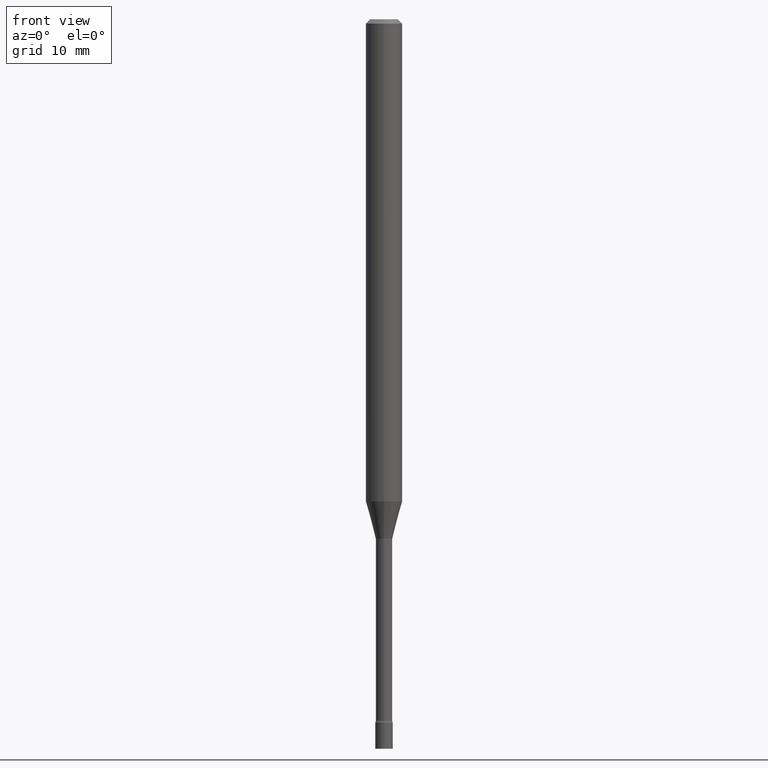
[diagram: clean part render]
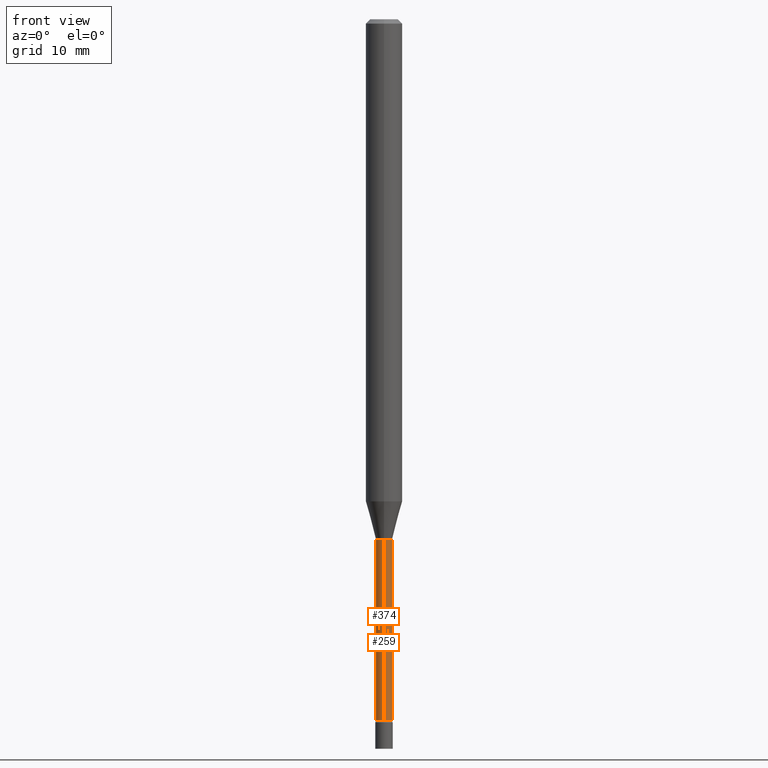
[diagram: same view with one multi-face feature highlighted, each face labeled with its STEP entity id]
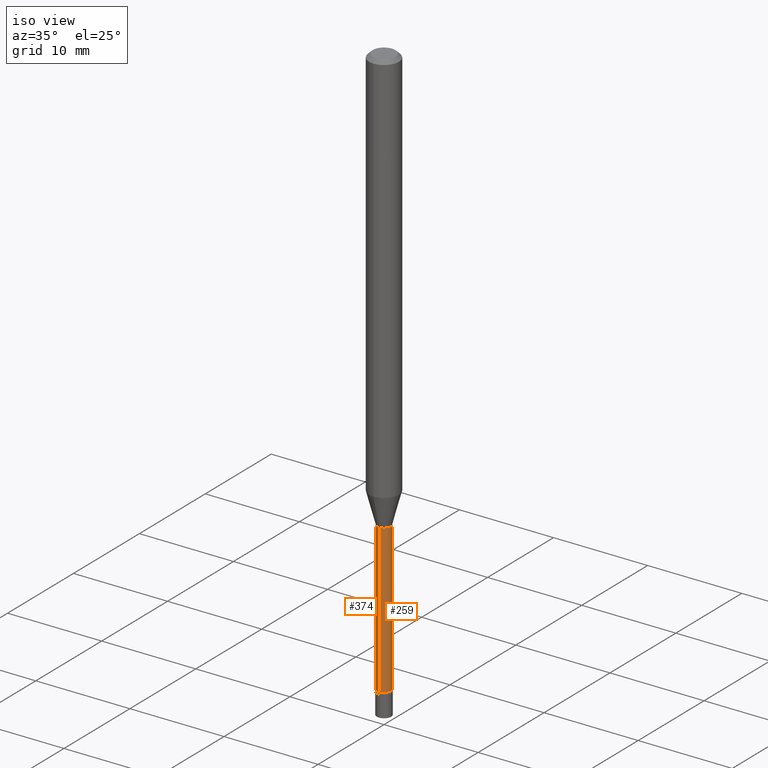
[diagram: same view with one multi-face feature highlighted, each face labeled with its STEP entity id]
A machine part, front view. The highlighted faces form ONE feature: a constant-radius fillet chain: 2 tangent blend faces with common blend radius 0.7163 mm. The faces share edges in the B-rep.
A second angle (iso view) of the same feature is appended — it is thin or edge-on in the first view.
Their STEP definitions:
[1] entity #259 (Cylinder):
#60 = VERTEX_POINT ( 'NONE', #427 ) ;
#77 = ORIENTED_EDGE ( 'NONE', *, *, #159, .F. ) ;
#87 = CARTESIAN_POINT ( 'NONE',  ( 4.357844746402980234E-29, -6.221615734068562240E-15, -1.781974787463811216 ) ) ;
#121 = DIRECTION ( 'NONE',  ( -6.982962677686265922E-15, -1.000000000000000000, 0.000000000000000000 ) ) ;
#145 = CYLINDRICAL_SURFACE ( 'NONE', #170, 0.02820000000000007917 ) ;
#159 = EDGE_CURVE ( 'NONE', #60, #311, #324, .T. ) ;
#165 = EDGE_LOOP ( 'NONE', ( #167, #448, #339, #77 ) ) ;
#167 = ORIENTED_EDGE ( 'NONE', *, *, #413, .T. ) ;
#170 = AXIS2_PLACEMENT_3D ( 'NONE', #289, #438, #393 ) ;
#172 = AXIS2_PLACEMENT_3D ( 'NONE', #87, #260, #489 ) ;
#179 = VERTEX_POINT ( 'NONE', #470 ) ;
#203 = DIRECTION ( 'NONE',  ( -2.445514255903287071E-29, 3.491416252259917408E-15, 1.000000000000000000 ) ) ;
#206 = DIRECTION ( 'NONE',  ( -2.445514255903286790E-29, 3.491416252259917408E-15, 1.000000000000000000 ) ) ;
#214 = CARTESIAN_POINT ( 'NONE',  ( -1.969195475107090191E-16, -0.02820000000000621315, -1.781974787463811216 ) ) ;
#217 = EDGE_CURVE ( 'NONE', #290, #179, #402, .T. ) ;
#259 = ADVANCED_FACE ( 'NONE', ( #354 ), #145, .T. ) ;
#260 = DIRECTION ( 'NONE',  ( -2.445514255903286790E-29, 3.491416252259917408E-15, 1.000000000000000000 ) ) ;
#277 = VECTOR ( 'NONE', #284, 39.37007874015748143 ) ;
#284 = DIRECTION ( 'NONE',  ( -2.445514255903287071E-29, 3.491416252259917408E-15, 1.000000000000000000 ) ) ;
#289 = CARTESIAN_POINT ( 'NONE',  ( 0.000000000000000000, 0.000000000000000000, 0.000000000000000000 ) ) ;
#290 = VERTEX_POINT ( 'NONE', #337 ) ;
#291 = CARTESIAN_POINT ( 'NONE',  ( 2.003730514843487903E-16, 0.02820000000000007917, -9.845793831372994551E-17 ) ) ;
#311 = VERTEX_POINT ( 'NONE', #214 ) ;
#324 = LINE ( 'NONE', #514, #277 ) ;
#328 = CARTESIAN_POINT ( 'NONE',  ( 5.876266033014929220E-29, -8.389438205377856911E-15, -2.402875394747777893 ) ) ;
#330 = EDGE_CURVE ( 'NONE', #311, #179, #371, .T. ) ;
#337 = CARTESIAN_POINT ( 'NONE',  ( 2.067679361062483248E-16, 0.02819999999999178025, -2.402875394747777893 ) ) ;
#339 = ORIENTED_EDGE ( 'NONE', *, *, #330, .F. ) ;
#354 = FACE_OUTER_BOUND ( 'NONE', #165, .T. ) ;
#371 = CIRCLE ( 'NONE', #172, 0.02819999999999998896 ) ;
#393 = DIRECTION ( 'NONE',  ( -6.982962677686265922E-15, -1.000000000000000000, 3.491416252259917408E-15 ) ) ;
#402 = LINE ( 'NONE', #291, #497 ) ;
#411 = CIRCLE ( 'NONE', #458, 0.02820000000000016938 ) ;
#413 = EDGE_CURVE ( 'NONE', #60, #290, #411, .T. ) ;
#427 = CARTESIAN_POINT ( 'NONE',  ( -1.969195475106951401E-16, -0.02820000000000855503, -2.402875394747777893 ) ) ;
#438 = DIRECTION ( 'NONE',  ( -2.445514255903286790E-29, 3.491416252259917408E-15, 1.000000000000000000 ) ) ;
#448 = ORIENTED_EDGE ( 'NONE', *, *, #217, .T. ) ;
#458 = AXIS2_PLACEMENT_3D ( 'NONE', #328, #206, #121 ) ;
#470 = CARTESIAN_POINT ( 'NONE',  ( 2.003730514844073386E-16, 0.02819999999999376825, -1.781974787463811216 ) ) ;
#489 = DIRECTION ( 'NONE',  ( -6.982962677686265133E-15, -1.000000000000000000, 0.000000000000000000 ) ) ;
#497 = VECTOR ( 'NONE', #203, 39.37007874015748143 ) ;
#514 = CARTESIAN_POINT ( 'NONE',  ( -1.969195475107532446E-16, -0.02820000000000007917, 9.845793831372994551E-17 ) ) ;
[2] entity #374 (Cylinder):
#5 = DIRECTION ( 'NONE',  ( -2.445514255903286790E-29, 3.491416252259917408E-15, 1.000000000000000000 ) ) ;
#12 = EDGE_LOOP ( 'NONE', ( #459, #340, #84, #229 ) ) ;
#38 = CIRCLE ( 'NONE', #466, 0.02820000000000016938 ) ;
#60 = VERTEX_POINT ( 'NONE', #427 ) ;
#81 = CYLINDRICAL_SURFACE ( 'NONE', #436, 0.02820000000000007917 ) ;
#84 = ORIENTED_EDGE ( 'NONE', *, *, #159, .T. ) ;
#96 = EDGE_CURVE ( 'NONE', #290, #60, #38, .T. ) ;
#135 = EDGE_CURVE ( 'NONE', #179, #311, #419, .T. ) ;
#156 = DIRECTION ( 'NONE',  ( -2.445514255903286790E-29, 3.491416252259917408E-15, 1.000000000000000000 ) ) ;
#159 = EDGE_CURVE ( 'NONE', #60, #311, #324, .T. ) ;
#179 = VERTEX_POINT ( 'NONE', #470 ) ;
#203 = DIRECTION ( 'NONE',  ( -2.445514255903287071E-29, 3.491416252259917408E-15, 1.000000000000000000 ) ) ;
#207 = DIRECTION ( 'NONE',  ( -6.982962677686265133E-15, -1.000000000000000000, 0.000000000000000000 ) ) ;
#212 = FACE_OUTER_BOUND ( 'NONE', #12, .T. ) ;
#214 = CARTESIAN_POINT ( 'NONE',  ( -1.969195475107090191E-16, -0.02820000000000621315, -1.781974787463811216 ) ) ;
#217 = EDGE_CURVE ( 'NONE', #290, #179, #402, .T. ) ;
#229 = ORIENTED_EDGE ( 'NONE', *, *, #135, .F. ) ;
#277 = VECTOR ( 'NONE', #284, 39.37007874015748143 ) ;
#284 = DIRECTION ( 'NONE',  ( -2.445514255903287071E-29, 3.491416252259917408E-15, 1.000000000000000000 ) ) ;
#290 = VERTEX_POINT ( 'NONE', #337 ) ;
#291 = CARTESIAN_POINT ( 'NONE',  ( 2.003730514843487903E-16, 0.02820000000000007917, -9.845793831372994551E-17 ) ) ;
#311 = VERTEX_POINT ( 'NONE', #214 ) ;
#318 = CARTESIAN_POINT ( 'NONE',  ( 4.357844746402980234E-29, -6.221615734068562240E-15, -1.781974787463811216 ) ) ;
#324 = LINE ( 'NONE', #514, #277 ) ;
#337 = CARTESIAN_POINT ( 'NONE',  ( 2.067679361062483248E-16, 0.02819999999999178025, -2.402875394747777893 ) ) ;
#338 = DIRECTION ( 'NONE',  ( -6.982962677686265922E-15, -1.000000000000000000, 3.491416252259917408E-15 ) ) ;
#340 = ORIENTED_EDGE ( 'NONE', *, *, #96, .T. ) ;
#344 = DIRECTION ( 'NONE',  ( -2.445514255903286790E-29, 3.491416252259917408E-15, 1.000000000000000000 ) ) ;
#367 = CARTESIAN_POINT ( 'NONE',  ( 0.000000000000000000, 0.000000000000000000, 0.000000000000000000 ) ) ;
#374 = ADVANCED_FACE ( 'NONE', ( #212 ), #81, .T. ) ;
#402 = LINE ( 'NONE', #291, #497 ) ;
#419 = CIRCLE ( 'NONE', #433, 0.02819999999999998896 ) ;
#420 = DIRECTION ( 'NONE',  ( -6.982962677686265922E-15, -1.000000000000000000, 0.000000000000000000 ) ) ;
#427 = CARTESIAN_POINT ( 'NONE',  ( -1.969195475106951401E-16, -0.02820000000000855503, -2.402875394747777893 ) ) ;
#433 = AXIS2_PLACEMENT_3D ( 'NONE', #318, #156, #207 ) ;
#436 = AXIS2_PLACEMENT_3D ( 'NONE', #367, #5, #338 ) ;
#459 = ORIENTED_EDGE ( 'NONE', *, *, #217, .F. ) ;
#462 = CARTESIAN_POINT ( 'NONE',  ( 5.876266033014929220E-29, -8.389438205377856911E-15, -2.402875394747777893 ) ) ;
#466 = AXIS2_PLACEMENT_3D ( 'NONE', #462, #344, #420 ) ;
#470 = CARTESIAN_POINT ( 'NONE',  ( 2.003730514844073386E-16, 0.02819999999999376825, -1.781974787463811216 ) ) ;
#497 = VECTOR ( 'NONE', #203, 39.37007874015748143 ) ;
#514 = CARTESIAN_POINT ( 'NONE',  ( -1.969195475107532446E-16, -0.02820000000000007917, 9.845793831372994551E-17 ) ) ;